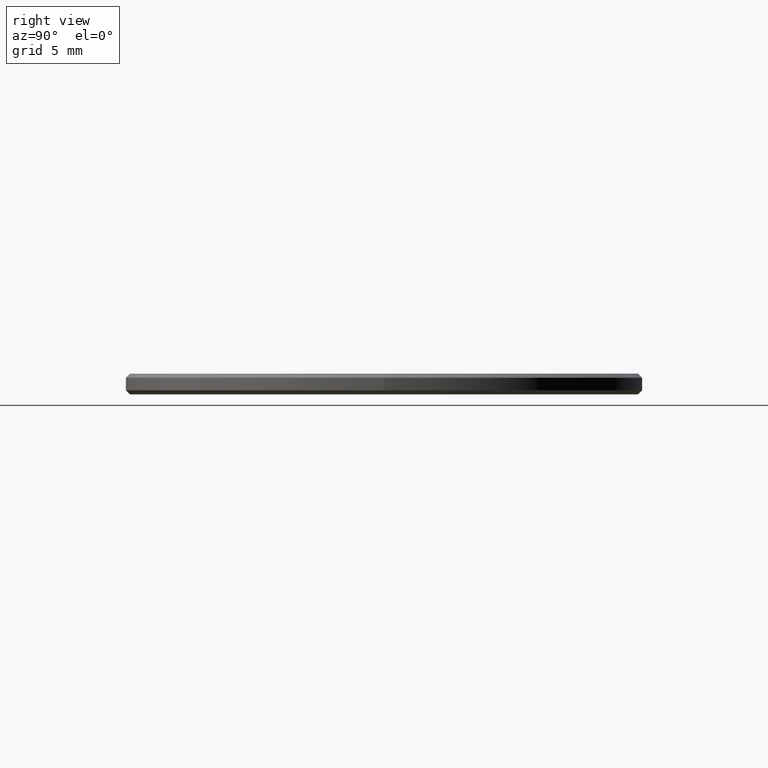
[diagram: clean part render]
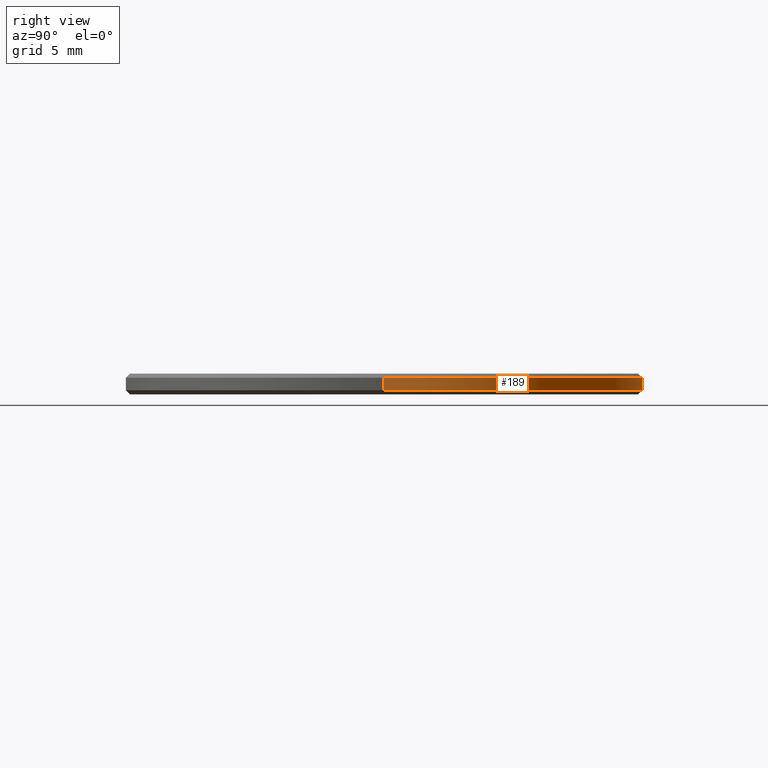
[diagram: same view with one face highlighted and labeled with its STEP entity id]
A machine part, right view. The second image highlights one B-rep face of the part: STEP entity #189.
In plain terms, the highlighted cylindrical surface (partial cylindrical patch) has radius 12.5 mm, axis along (-0, -0, -1).
Its self-contained STEP definition (entity closure, byte-faithful):
#10 = ORIENTED_EDGE ( 'NONE', *, *, #168, .F. ) ;
#11 = VECTOR ( 'NONE', #91, 1000.000000000000000 ) ;
#17 = CARTESIAN_POINT ( 'NONE',  ( 0.000000000000000000, 0.000000000000000000, 1.000000000000000000 ) ) ;
#19 = CYLINDRICAL_SURFACE ( 'NONE', #79, 12.50000000000000000 ) ;
#21 = CARTESIAN_POINT ( 'NONE',  ( 0.000000000000000000, 0.000000000000000000, 0.8000000000000029310 ) ) ;
#28 = VERTEX_POINT ( 'NONE', #84 ) ;
#31 = VERTEX_POINT ( 'NONE', #237 ) ;
#36 = DIRECTION ( 'NONE',  ( 1.000000000000000000, 0.000000000000000000, 0.000000000000000000 ) ) ;
#44 = CIRCLE ( 'NONE', #215, 12.50000000000000000 ) ;
#47 = AXIS2_PLACEMENT_3D ( 'NONE', #216, #220, #36 ) ;
#53 = CARTESIAN_POINT ( 'NONE',  ( -12.50000000000000000, 0.000000000000000000, 0.1999999999999987899 ) ) ;
#55 = FACE_OUTER_BOUND ( 'NONE', #111, .T. ) ;
#74 = LINE ( 'NONE', #208, #11 ) ;
#75 = VECTOR ( 'NONE', #149, 1000.000000000000000 ) ;
#79 = AXIS2_PLACEMENT_3D ( 'NONE', #17, #224, #150 ) ;
#82 = VERTEX_POINT ( 'NONE', #53 ) ;
#84 = CARTESIAN_POINT ( 'NONE',  ( 12.50000000000000000, 1.530808498934191521E-15, 0.8000000000000029310 ) ) ;
#91 = DIRECTION ( 'NONE',  ( -0.000000000000000000, -0.000000000000000000, -1.000000000000000000 ) ) ;
#96 = EDGE_CURVE ( 'NONE', #160, #82, #143, .T. ) ;
#99 = ORIENTED_EDGE ( 'NONE', *, *, #185, .T. ) ;
#111 = EDGE_LOOP ( 'NONE', ( #198, #99, #217, #10 ) ) ;
#127 = LINE ( 'NONE', #186, #75 ) ;
#143 = CIRCLE ( 'NONE', #47, 12.50000000000000000 ) ;
#149 = DIRECTION ( 'NONE',  ( -0.000000000000000000, -0.000000000000000000, -1.000000000000000000 ) ) ;
#150 = DIRECTION ( 'NONE',  ( -1.000000000000000000, 0.000000000000000000, 0.000000000000000000 ) ) ;
#160 = VERTEX_POINT ( 'NONE', #164 ) ;
#163 = DIRECTION ( 'NONE',  ( 0.000000000000000000, 0.000000000000000000, -1.000000000000000000 ) ) ;
#164 = CARTESIAN_POINT ( 'NONE',  ( 12.50000000000000000, 1.530808498934191521E-15, 0.1999999999999987899 ) ) ;
#168 = EDGE_CURVE ( 'NONE', #31, #82, #127, .T. ) ;
#185 = EDGE_CURVE ( 'NONE', #28, #160, #74, .T. ) ;
#186 = CARTESIAN_POINT ( 'NONE',  ( -12.50000000000000000, 0.000000000000000000, 1.000000000000000000 ) ) ;
#189 = ADVANCED_FACE ( 'NONE', ( #55 ), #19, .T. ) ;
#198 = ORIENTED_EDGE ( 'NONE', *, *, #206, .T. ) ;
#204 = DIRECTION ( 'NONE',  ( 1.000000000000000000, 0.000000000000000000, 0.000000000000000000 ) ) ;
#206 = EDGE_CURVE ( 'NONE', #31, #28, #44, .T. ) ;
#208 = CARTESIAN_POINT ( 'NONE',  ( 12.50000000000000000, 1.530808498934191521E-15, 1.000000000000000000 ) ) ;
#215 = AXIS2_PLACEMENT_3D ( 'NONE', #21, #163, #204 ) ;
#216 = CARTESIAN_POINT ( 'NONE',  ( 0.000000000000000000, 0.000000000000000000, 0.1999999999999987899 ) ) ;
#217 = ORIENTED_EDGE ( 'NONE', *, *, #96, .T. ) ;
#220 = DIRECTION ( 'NONE',  ( -0.000000000000000000, -0.000000000000000000, 1.000000000000000000 ) ) ;
#224 = DIRECTION ( 'NONE',  ( -0.000000000000000000, -0.000000000000000000, -1.000000000000000000 ) ) ;
#237 = CARTESIAN_POINT ( 'NONE',  ( -12.50000000000000000, 0.000000000000000000, 0.8000000000000029310 ) ) ;